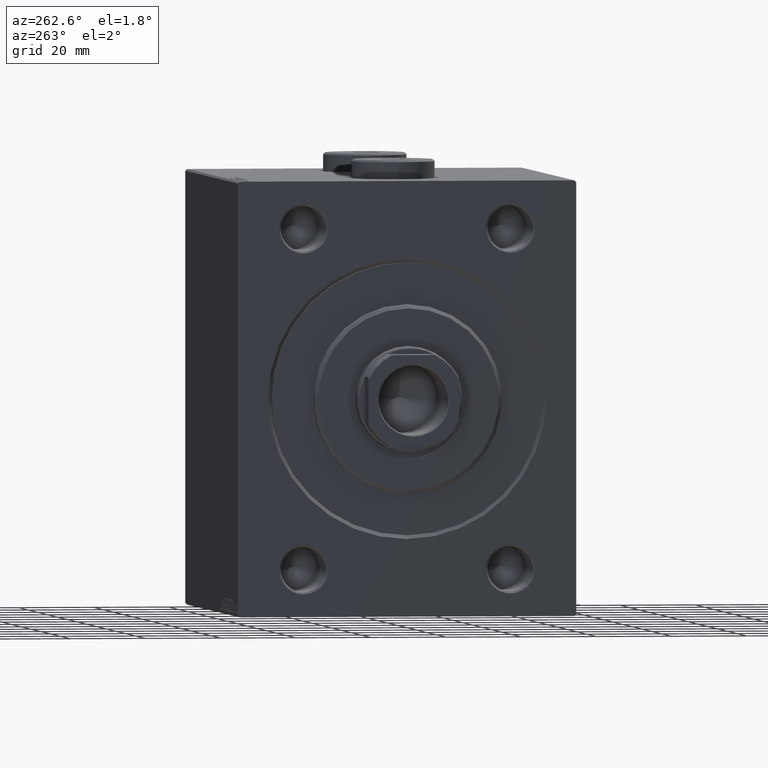
[diagram: clean part render]
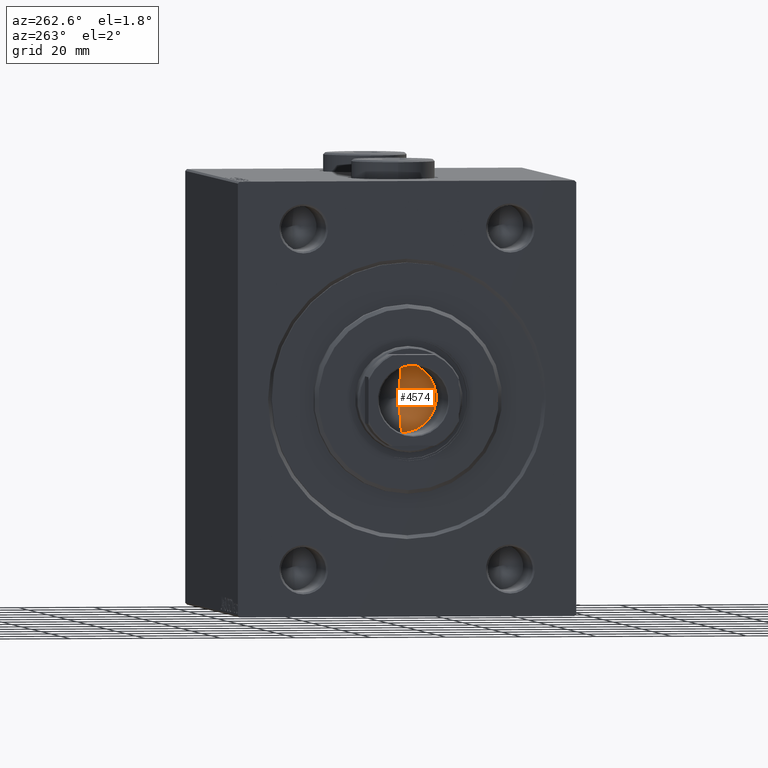
[diagram: same view with one face highlighted and labeled with its STEP entity id]
A machine part, auxiliary view. The second image highlights one B-rep face of the part: STEP entity #4574.
In plain terms, the highlighted conical surface has half-angle 59 deg.
Its self-contained STEP definition (entity closure, byte-faithful):
#1209 = VECTOR ( 'NONE', #40633, 1000.000000000000000 ) ;
#1538 = DIRECTION ( 'NONE',  ( -0.000000000000000000, -0.000000000000000000, 1.000000000000000000 ) ) ;
#2236 = EDGE_LOOP ( 'NONE', ( #35946, #31755, #3040 ) ) ;
#2895 = VERTEX_POINT ( 'NONE', #28573 ) ;
#3040 = ORIENTED_EDGE ( 'NONE', *, *, #42171, .T. ) ;
#4249 = VECTOR ( 'NONE', #22548, 1000.000000000000000 ) ;
#4548 = CARTESIAN_POINT ( 'NONE',  ( 0.000000000000000000, 0.000000000000000000, 79.00000000000001421 ) ) ;
#4574 = ADVANCED_FACE ( 'NONE', ( #14578 ), #12688, .F. ) ;
#6460 = CIRCLE ( 'NONE', #21191, 9.249999999999994671 ) ;
#8078 = CARTESIAN_POINT ( 'NONE',  ( 9.249999999999994671, 0.000000000000000000, 79.00000000000001421 ) ) ;
#11078 = VERTEX_POINT ( 'NONE', #20760 ) ;
#12688 = CONICAL_SURFACE ( 'NONE', #20068, 9.249999999999994671, 1.029744258676652535 ) ;
#14578 = FACE_OUTER_BOUND ( 'NONE', #2236, .T. ) ;
#14939 = LINE ( 'NONE', #26011, #4249 ) ;
#19723 = EDGE_CURVE ( 'NONE', #11078, #2895, #23285, .T. ) ;
#20068 = AXIS2_PLACEMENT_3D ( 'NONE', #29329, #42767, #39972 ) ;
#20760 = CARTESIAN_POINT ( 'NONE',  ( -6.793016015247754405E-15, 0.000000000000000000, 73.44203927399506426 ) ) ;
#21191 = AXIS2_PLACEMENT_3D ( 'NONE', #4548, #1538, #36630 ) ;
#22548 = DIRECTION ( 'NONE',  ( 0.8571673007021113344, 0.000000000000000000, 0.5150380749100558209 ) ) ;
#23285 = LINE ( 'NONE', #26525, #1209 ) ;
#24908 = VERTEX_POINT ( 'NONE', #8078 ) ;
#26011 = CARTESIAN_POINT ( 'NONE',  ( 9.249999999999994671, 0.000000000000000000, 79.00000000000001421 ) ) ;
#26525 = CARTESIAN_POINT ( 'NONE',  ( -9.249999999999994671, 1.132798289211300909E-15, 79.00000000000001421 ) ) ;
#28573 = CARTESIAN_POINT ( 'NONE',  ( -9.249999999999994671, 1.132798289211300909E-15, 79.00000000000001421 ) ) ;
#29329 = CARTESIAN_POINT ( 'NONE',  ( 0.000000000000000000, 0.000000000000000000, 79.00000000000001421 ) ) ;
#31755 = ORIENTED_EDGE ( 'NONE', *, *, #19723, .T. ) ;
#35946 = ORIENTED_EDGE ( 'NONE', *, *, #42137, .F. ) ;
#36630 = DIRECTION ( 'NONE',  ( 1.000000000000000000, 0.000000000000000000, 0.000000000000000000 ) ) ;
#39972 = DIRECTION ( 'NONE',  ( 1.000000000000000000, 0.000000000000000000, 0.000000000000000000 ) ) ;
#40633 = DIRECTION ( 'NONE',  ( -0.8571673007021113344, 1.049727191138617463E-16, 0.5150380749100558209 ) ) ;
#42137 = EDGE_CURVE ( 'NONE', #11078, #24908, #14939, .T. ) ;
#42171 = EDGE_CURVE ( 'NONE', #2895, #24908, #6460, .T. ) ;
#42767 = DIRECTION ( 'NONE',  ( -0.000000000000000000, -0.000000000000000000, 1.000000000000000000 ) ) ;